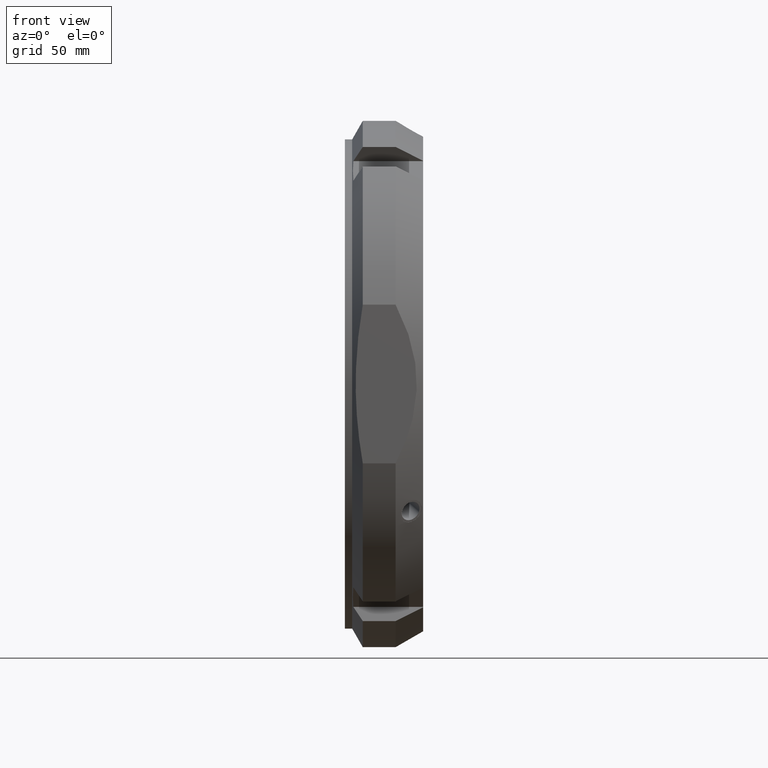
[diagram: clean part render]
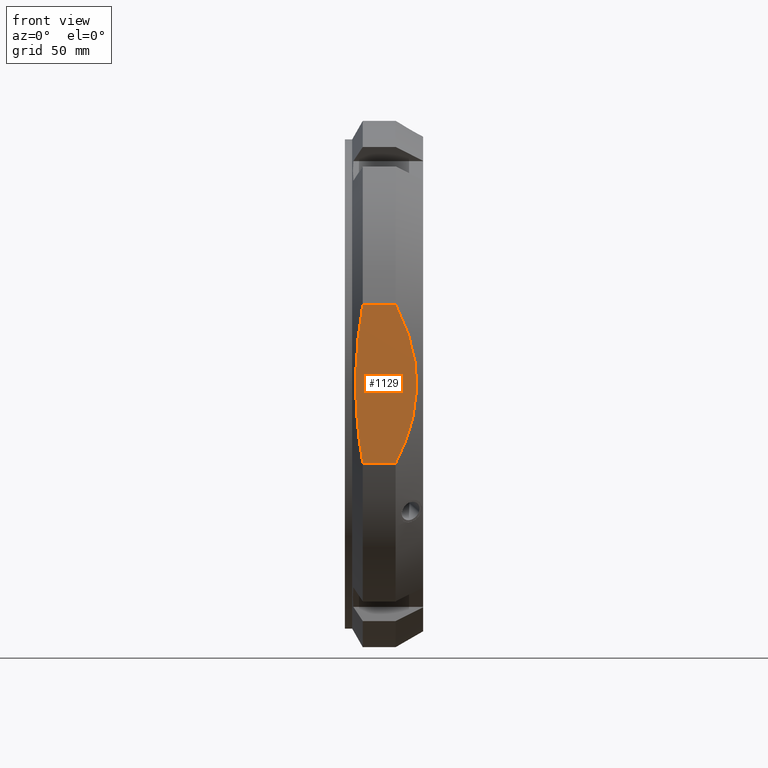
[diagram: same view with one face highlighted and labeled with its STEP entity id]
A machine part, front view. The second image highlights one B-rep face of the part: STEP entity #1129.
In plain terms, the highlighted planar face has unit normal (0, 1, 0).
Its self-contained STEP definition (entity closure, byte-faithful):
#598=CARTESIAN_POINT('',(20.741669750802288,-102.50000000000007,32.403703492039078));
#599=VERTEX_POINT('',#598);
#607=CARTESIAN_POINT('',(20.741669750802288,-102.50000000000003,-32.40370349203917));
#608=VERTEX_POINT('',#607);
#609=CARTESIAN_POINT('',(20.741669750802298,-102.50000000000009,32.403703492039035));
#610=CARTESIAN_POINT('',(37.659375313102736,-102.50000000000007,-3.600107E-014));
#611=CARTESIAN_POINT('',(20.741669750802288,-102.50000000000006,-32.403703492039121));
#619=(BOUNDED_CURVE()B_SPLINE_CURVE(2,(#609,#610,#611),.UNSPECIFIED.,.F.,.U.)B_SPLINE_CURVE_WITH_KNOTS((3,3),(0.0,6.70820393249932),.UNSPECIFIED.)CURVE()GEOMETRIC_REPRESENTATION_ITEM()RATIONAL_B_SPLINE_CURVE((1.0,1.048780487804878,1.0))REPRESENTATION_ITEM(''));
#620=EDGE_CURVE('',#599,#608,#619,.T.);
#705=CARTESIAN_POINT('',(7.330127018922159,-102.50000000000003,-32.40370349203917));
#706=VERTEX_POINT('',#705);
#707=CARTESIAN_POINT('',(20.741669750802291,-102.50000000000003,-32.40370349203917));
#708=DIRECTION('',(-1.0,0.0,0.0));
#709=VECTOR('',#708,13.411542731880132);
#710=LINE('',#707,#709);
#711=EDGE_CURVE('',#608,#706,#710,.T.);
#961=CARTESIAN_POINT('',(7.330127018922159,-102.50000000000007,32.403703492039078));
#962=VERTEX_POINT('',#961);
#970=CARTESIAN_POINT('',(7.33012701892216,-102.50000000000007,32.403703492039078));
#971=DIRECTION('',(1.0,0.0,0.0));
#972=VECTOR('',#971,13.411542731880132);
#973=LINE('',#970,#972);
#974=EDGE_CURVE('',#962,#599,#973,.T.);
#1106=CARTESIAN_POINT('',(0.0,-102.5,-130.00000000000003));
#1107=DIRECTION('',(0.0,1.0,0.0));
#1108=DIRECTION('',(0.0,0.0,1.0));
#1109=AXIS2_PLACEMENT_3D('',#1106,#1107,#1108);
#1110=PLANE('',#1109);
#1111=CARTESIAN_POINT('',(7.33012701892215,-102.50000000000006,-32.40370349203905));
#1112=CARTESIAN_POINT('',(1.6908918314887,-102.50000000000007,3.093004E-014));
#1113=CARTESIAN_POINT('',(7.330127018922146,-102.50000000000009,32.403703492038964));
#1121=(BOUNDED_CURVE()B_SPLINE_CURVE(2,(#1111,#1112,#1113),.UNSPECIFIED.,.F.,.U.)B_SPLINE_CURVE_WITH_KNOTS((3,3),(0.0,6.506407098647652),.UNSPECIFIED.)CURVE()GEOMETRIC_REPRESENTATION_ITEM()RATIONAL_B_SPLINE_CURVE((1.0,1.048780487804879,1.0))REPRESENTATION_ITEM(''));
#1122=EDGE_CURVE('',#706,#962,#1121,.T.);
#1123=ORIENTED_EDGE('',*,*,#1122,.F.);
#1124=ORIENTED_EDGE('',*,*,#711,.F.);
#1125=ORIENTED_EDGE('',*,*,#620,.F.);
#1126=ORIENTED_EDGE('',*,*,#974,.F.);
#1127=EDGE_LOOP('',(#1123,#1124,#1125,#1126));
#1128=FACE_OUTER_BOUND('',#1127,.T.);
#1129=ADVANCED_FACE('',(#1128),#1110,.F.);